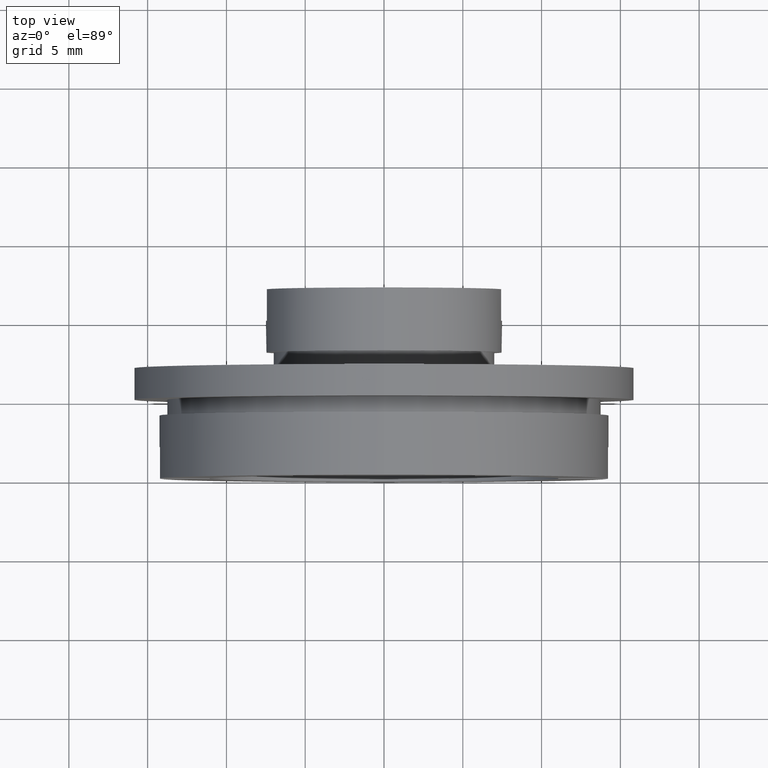
[diagram: clean part render]
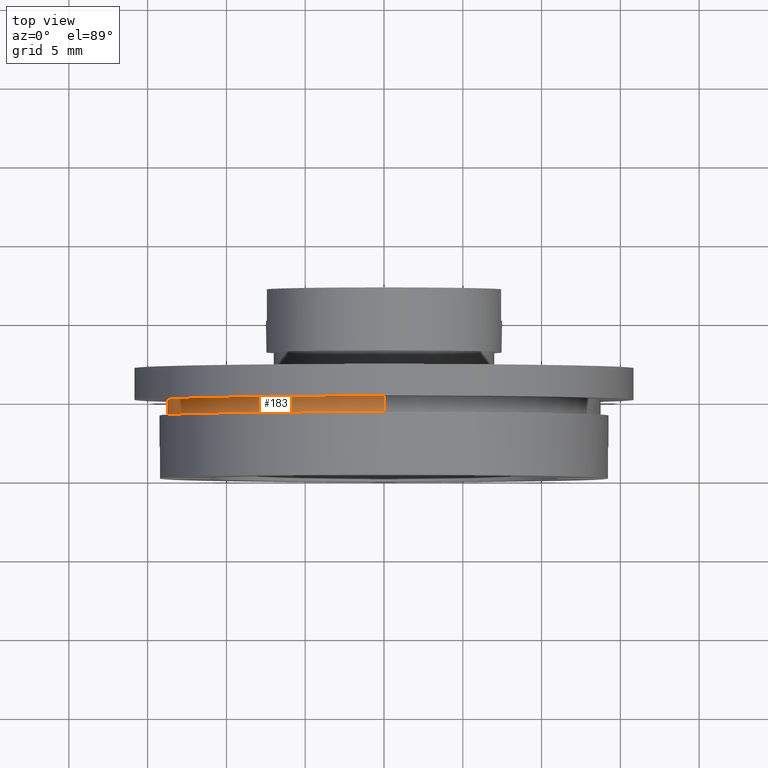
[diagram: same view with one face highlighted and labeled with its STEP entity id]
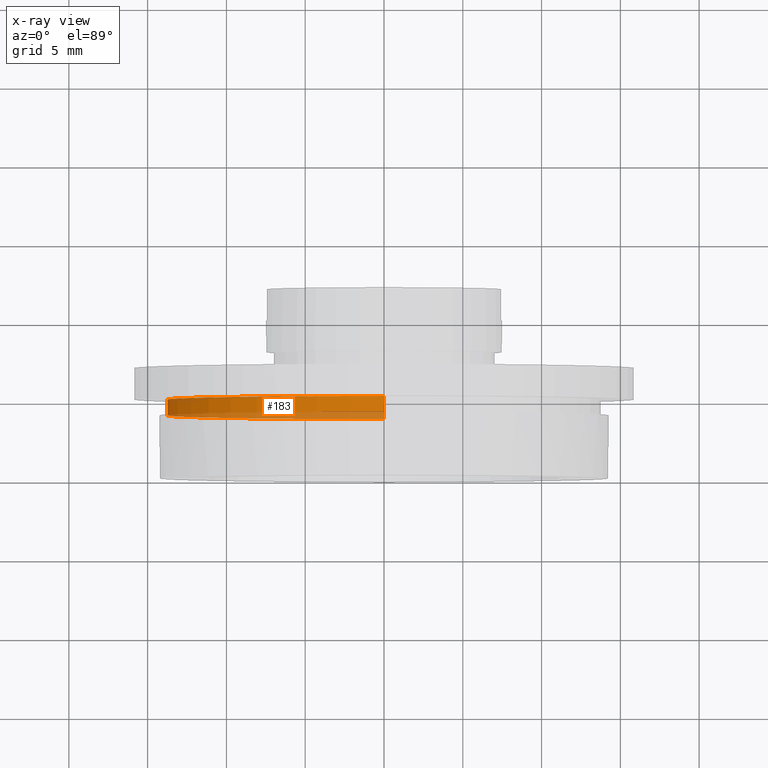
[diagram: x-ray of the same camera — body ghosted, the highlighted face saturated]
A machine part, top view. The second image highlights one B-rep face of the part: STEP entity #183.
The next image is the same camera in x-ray: the body ghosted, the highlighted face saturated — about 27% of this face is hidden behind the body in this view.
In plain terms, the highlighted cylindrical surface (partial cylindrical patch) has radius 13.75 mm, axis along (-0, 1, -0).
Its self-contained STEP definition (entity closure, byte-faithful):
#9 = VERTEX_POINT ( 'NONE', #799 ) ;
#15 = CARTESIAN_POINT ( 'NONE',  ( 1.683889348827610500E-015, 4.000000000000000000, -13.74999999999999800 ) ) ;
#49 = FACE_OUTER_BOUND ( 'NONE', #833, .T. ) ;
#114 = VECTOR ( 'NONE', #1060, 1000.000000000000000 ) ;
#125 = EDGE_CURVE ( 'NONE', #246, #1089, #146, .T. ) ;
#146 = LINE ( 'NONE', #1043, #114 ) ;
#183 = ADVANCED_FACE ( 'NONE', ( #49 ), #518, .T. ) ;
#193 = AXIS2_PLACEMENT_3D ( 'NONE', #970, #1084, #511 ) ;
#246 = VERTEX_POINT ( 'NONE', #1244 ) ;
#310 = VERTEX_POINT ( 'NONE', #15 ) ;
#382 = CIRCLE ( 'NONE', #877, 13.74999999999999800 ) ;
#422 = ORIENTED_EDGE ( 'NONE', *, *, #429, .F. ) ;
#429 = EDGE_CURVE ( 'NONE', #310, #9, #825, .T. ) ;
#454 = ORIENTED_EDGE ( 'NONE', *, *, #125, .T. ) ;
#477 = CARTESIAN_POINT ( 'NONE',  ( 0.0000000000000000000, 5.000000000000000900, 13.74999999999999800 ) ) ;
#511 = DIRECTION ( 'NONE',  ( 0.0000000000000000000, 0.0000000000000000000, 1.000000000000000000 ) ) ;
#518 = CYLINDRICAL_SURFACE ( 'NONE', #193, 13.74999999999999800 ) ;
#572 = CARTESIAN_POINT ( 'NONE',  ( 0.0000000000000000000, 4.000000000000000000, 0.0000000000000000000 ) ) ;
#772 = DIRECTION ( 'NONE',  ( -0.0000000000000000000, 1.000000000000000000, -0.0000000000000000000 ) ) ;
#799 = CARTESIAN_POINT ( 'NONE',  ( 1.683889348827610500E-015, 5.000000000000000900, -13.74999999999999800 ) ) ;
#822 = EDGE_CURVE ( 'NONE', #9, #1089, #382, .T. ) ;
#825 = LINE ( 'NONE', #875, #857 ) ;
#833 = EDGE_LOOP ( 'NONE', ( #422, #924, #454, #1050 ) ) ;
#856 = DIRECTION ( 'NONE',  ( 0.0000000000000000000, 0.0000000000000000000, 1.000000000000000000 ) ) ;
#857 = VECTOR ( 'NONE', #1228, 1000.000000000000000 ) ;
#875 = CARTESIAN_POINT ( 'NONE',  ( 1.683889348827610500E-015, 22.67749945107591400, -13.74999999999999800 ) ) ;
#877 = AXIS2_PLACEMENT_3D ( 'NONE', #934, #1300, #1092 ) ;
#924 = ORIENTED_EDGE ( 'NONE', *, *, #1310, .T. ) ;
#934 = CARTESIAN_POINT ( 'NONE',  ( 0.0000000000000000000, 5.000000000000000900, 0.0000000000000000000 ) ) ;
#970 = CARTESIAN_POINT ( 'NONE',  ( 0.0000000000000000000, 22.67749945107591400, 0.0000000000000000000 ) ) ;
#1043 = CARTESIAN_POINT ( 'NONE',  ( 0.0000000000000000000, 22.67749945107591400, 13.74999999999999800 ) ) ;
#1049 = AXIS2_PLACEMENT_3D ( 'NONE', #572, #772, #856 ) ;
#1050 = ORIENTED_EDGE ( 'NONE', *, *, #822, .F. ) ;
#1060 = DIRECTION ( 'NONE',  ( -0.0000000000000000000, 1.000000000000000000, -0.0000000000000000000 ) ) ;
#1084 = DIRECTION ( 'NONE',  ( -0.0000000000000000000, 1.000000000000000000, -0.0000000000000000000 ) ) ;
#1089 = VERTEX_POINT ( 'NONE', #477 ) ;
#1092 = DIRECTION ( 'NONE',  ( 0.0000000000000000000, 0.0000000000000000000, 1.000000000000000000 ) ) ;
#1228 = DIRECTION ( 'NONE',  ( -0.0000000000000000000, 1.000000000000000000, -0.0000000000000000000 ) ) ;
#1244 = CARTESIAN_POINT ( 'NONE',  ( 0.0000000000000000000, 4.000000000000000000, 13.74999999999999800 ) ) ;
#1300 = DIRECTION ( 'NONE',  ( -0.0000000000000000000, 1.000000000000000000, -0.0000000000000000000 ) ) ;
#1310 = EDGE_CURVE ( 'NONE', #310, #246, #1322, .T. ) ;
#1322 = CIRCLE ( 'NONE', #1049, 13.74999999999999800 ) ;